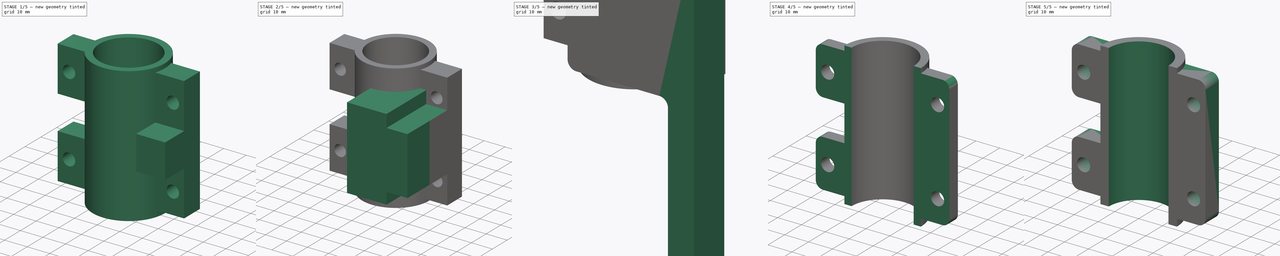
[diagram: build sequence overview — one tinted view per stage of 5, left to right]
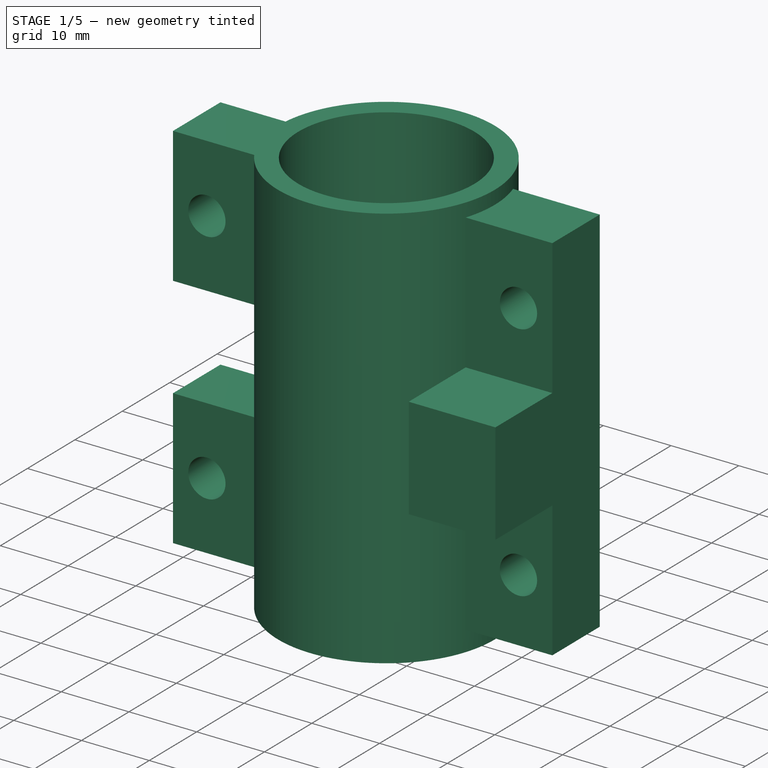
[diagram: stage 1 of 5 — iso view after this stage's code; geometry added in this stage tinted green]
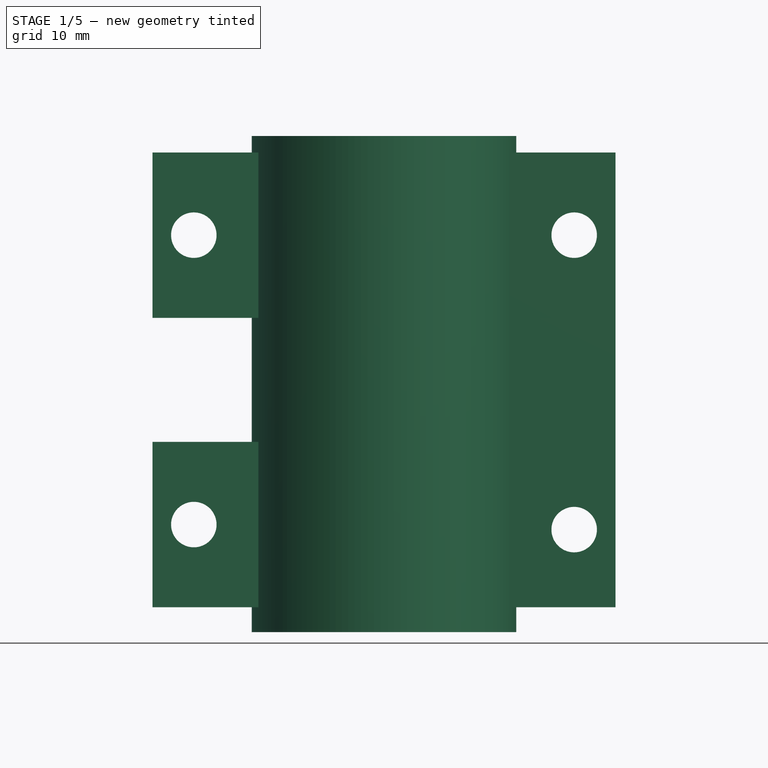
[diagram: stage 1 of 5 — front view after this stage's code; geometry added in this stage tinted green]
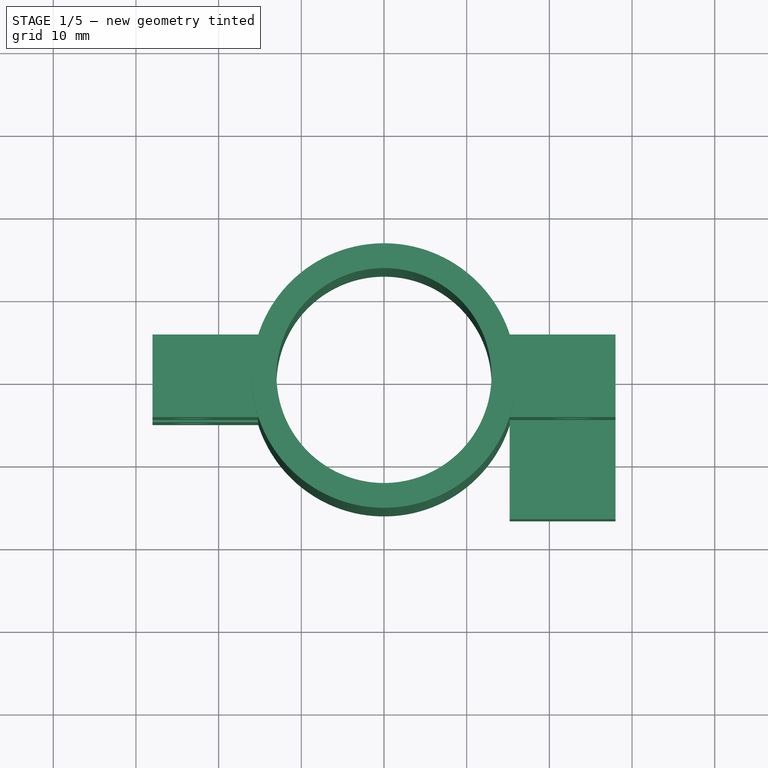
[diagram: stage 1 of 5 — top view after this stage's code; geometry added in this stage tinted green]
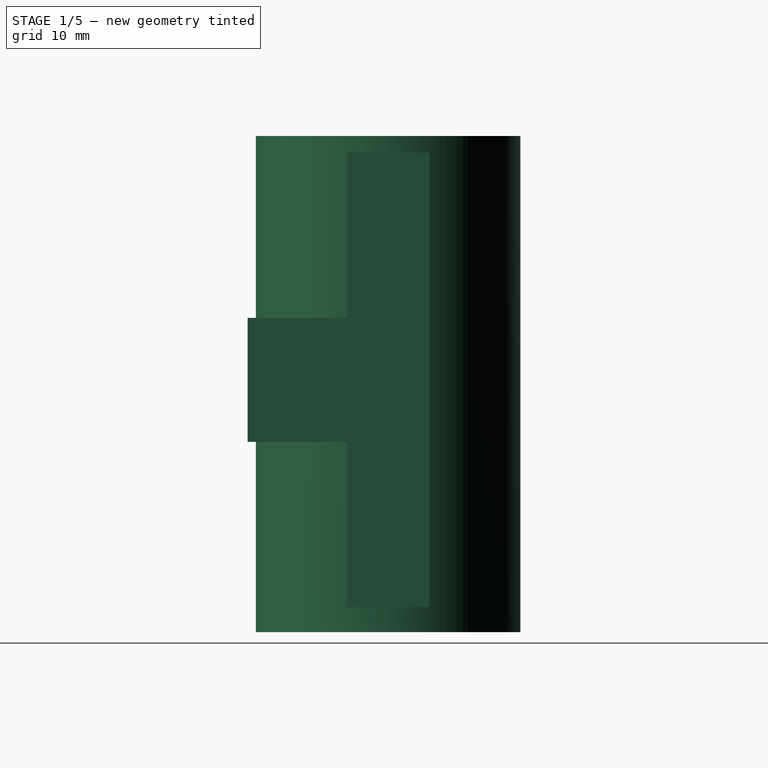
[diagram: stage 1 of 5 — right view after this stage's code; geometry added in this stage tinted green]
FCSTD DOCUMENT  (FreeCAD 1.0R39109 (Git))
Label: lockVV
License: All rights reserved
LicenseURL: http://en.wikipedia.org/wiki/All_rights_reserved
objects: PartDesign::Pad×17, Sketcher::SketchObject×12, PartDesign::Pocket×12, PartDesign::Fillet×7, PartDesign::Plane×1, PartDesign::Body×1
note: 134 computed .brp shape members not serialized (recipe doc carries the construction recipe); baked Part::Feature solids carry a one-line shape summary decoded from their .brp

FEATURE [Sketcher::SketchObject] Sketch
  ArcFitTolerance = 1e-06
  AttachmentSupport = -> [XY_Plane]
  FullyConstrained = true
  MakeInternals = false
  MapMode = 5
  sketch-geometry (2):
    g0: Circle CenterX=0 CenterY=0 CenterZ=0 NormalX=0 NormalY=0 NormalZ=1 AngleXU=0 Radius=16
    g1: Circle [constr] CenterX=0 CenterY=0 CenterZ=0 NormalX=0 NormalY=0 NormalZ=1 AngleXU=0 Radius=13
  constraints (4):
    c: Coincident(g0,g-1)
    c: Diameter(g0) = 32
    c: Coincident(g1,g0)
    c: Diameter(g1) = 26
FEATURE [PartDesign::Pad] Pad
  Direction = (0,0,1)
  Length = 60
  Length2 = 10
  Profile = -> Sketch
  ReferenceAxis = -> Sketch [N_Axis]
  Suppressed = false
  Type = 0
FEATURE [PartDesign::Plane] DatumPlane
  AttachmentOffset = pos=(1,0,0) rot=(0,-1,0;1.5708rad)
  AttachmentSupport = -> [Pad]
  Length = 98.0384
  MapMode = 7
  Placement = pos=(15,0,0) rot=(0,1,0;1.5708rad)
  ResizeMode = 0
  Width = 63.0384
FEATURE [Sketcher::SketchObject] Sketch002
  ArcFitTolerance = 1e-06
  AttachmentSupport = -> [DatumPlane]
  FullyConstrained = true
  MakeInternals = false
  MapMode = 5
  Placement = pos=(15,0,0) rot=(0,1,0;1.5708rad)
  sketch-geometry (8):
    g0: LineSegment StartX=-58 StartY=5 StartZ=0 EndX=-58 EndY=-5 EndZ=0
    g1: LineSegment StartX=-58 StartY=-5 StartZ=0 EndX=-38 EndY=-5 EndZ=0
    g2: LineSegment StartX=-38 StartY=-5 StartZ=0 EndX=-38 EndY=5 EndZ=0
    g3: LineSegment StartX=-38 StartY=5 StartZ=0 EndX=-58 EndY=5 EndZ=0
    g4: LineSegment StartX=-23 StartY=5 StartZ=0 EndX=-23 EndY=-5 EndZ=0
    g5: LineSegment StartX=-23 StartY=-5 StartZ=0 EndX=-3 EndY=-5 EndZ=0
    g6: LineSegment StartX=-3 StartY=-5 StartZ=0 EndX=-3 EndY=5 EndZ=0
    g7: LineSegment StartX=-3 StartY=5 StartZ=0 EndX=-23 EndY=5 EndZ=0
  constraints (24):
    c: Coincident(g0,g1)
    c: Coincident(g1,g2)
    c: Coincident(g2,g3)
    c: Coincident(g3,g0)
    c: Vertical(g0)
    c: Vertical(g2)
    c: Horizontal(g1)
    c: Horizontal(g3)
    c: Distance(g0,g2) = 20
    c: Distance(g1,g3) = 10
    c: Coincident(g4,g5)
    c: Coincident(g5,g6)
    c: Coincident(g6,g7)
    c: Coincident(g7,g4)
    c: Vertical(g4)
    c: Vertical(g6)
    c: Horizontal(g5)
    c: Horizontal(g7)
    c: Distance(g4,g6) = 20
    c: Distance(g5,g7) = 10
    c: DistanceX(g2,g4) = 15
    c: DistanceX(g6,g-1) = 3
    c: DistanceY(g6,g2) = 0
    c: DistanceY(g-1,g6) = 5
FEATURE [PartDesign::Pad] Pad001
  BaseFeature = -> Pad
  Direction = (1,0,2e-16)
  Length = 13
  Length2 = 10
  Profile = -> Sketch002
  ReferenceAxis = -> Sketch002 [N_Axis]
  Suppressed = false
  Type = 0
FEATURE [PartDesign::Pad] Pad002
  BaseFeature = -> Pad001
  Direction = (1,0,2e-16)
  Length = 56
  Length2 = 10
  Profile = -> Pad001 [Face13,Face12]
  Reversed = true
  Suppressed = false
  Type = 0
FEATURE [Sketcher::SketchObject] Sketch003
  ArcFitTolerance = 1e-06
  AttachmentSupport = -> [Pad002]
  FullyConstrained = true
  MakeInternals = false
  MapMode = 5
  Placement = pos=(0,0,60) rot=(0,0,1;0rad)
  sketch-geometry (1):
    g0: Circle CenterX=0 CenterY=0 CenterZ=0 NormalX=0 NormalY=0 NormalZ=1 AngleXU=0 Radius=13
  constraints (2):
    c: Coincident(g0,g-1)
    c: Diameter(g0) = 26
FEATURE [PartDesign::Pocket] Pocket
  BaseFeature = -> Pad002
  Direction = (0,0,-1)
  Length = 100
  Length2 = 5
  Profile = -> Sketch003
  ReferenceAxis = -> Sketch003 [N_Axis]
  Suppressed = false
  Type = 0
FEATURE [Sketcher::SketchObject] Sketch004
  ArcFitTolerance = 1e-06
  AttachmentSupport = -> [Pocket]
  FullyConstrained = true
  MakeInternals = false
  MapMode = 5
  Placement = pos=(0,5,0) rot=(0,0.707107,0.707107;3.14159rad)
  sketch-geometry (4):
    g0: Circle CenterX=-23 CenterY=48 CenterZ=0 NormalX=0 NormalY=0 NormalZ=1 AngleXU=0 Radius=2.75
    g1: Circle CenterX=-23 CenterY=12.39 CenterZ=0 NormalX=0 NormalY=0 NormalZ=1 AngleXU=0 Radius=2.75
    g2: Circle CenterX=23 CenterY=13 CenterZ=0 NormalX=0 NormalY=0 NormalZ=1 AngleXU=0 Radius=2.75
    g3: Circle CenterX=23 CenterY=48 CenterZ=0 NormalX=0 NormalY=0 NormalZ=1 AngleXU=0 Radius=2.75
  constraints (12):
    c: Diameter(g3) = 5.5
    c: Diameter(g2) = 5.5
    c: Diameter(g1) = 5.5
    c: Diameter(g0) = 5.5
    c: DistanceX(g1,g0) = 0
    c: DistanceX(g3,g2) = 0
    c: DistanceY(g0,g3) = 0
    c: DistanceY(g1,g2) = 0.61
    c: DistanceX(g-1,g2) = 23
    c: DistanceX(g1,g-1) = 23
    c: DistanceY(g-1,g2) = 13
    c: DistanceY(g2,g3) = 35
FEATURE [PartDesign::Pocket] Pocket001
  BaseFeature = -> Pocket
  Direction = (0,-1,2e-16)
  Length = 16
  Length2 = 5
  Profile = -> Sketch004
  ReferenceAxis = -> Sketch004 [N_Axis]
  Suppressed = false
  Type = 0
FEATURE [PartDesign::Pad] Pad003
  BaseFeature = -> Pocket001
  Direction = (2e-16,0,-1)
  Length = 15
  Length2 = 10
  Profile = -> Pocket001 [Face5]
  Suppressed = false
  Type = 0
FEATURE [PartDesign::Pad] Pad004
  BaseFeature = -> Pad003
  Direction = (0,-1,0)
  Length = 12
  Length2 = 10
  Profile = -> Pad003 [Face5]
  Suppressed = false
  Type = 0
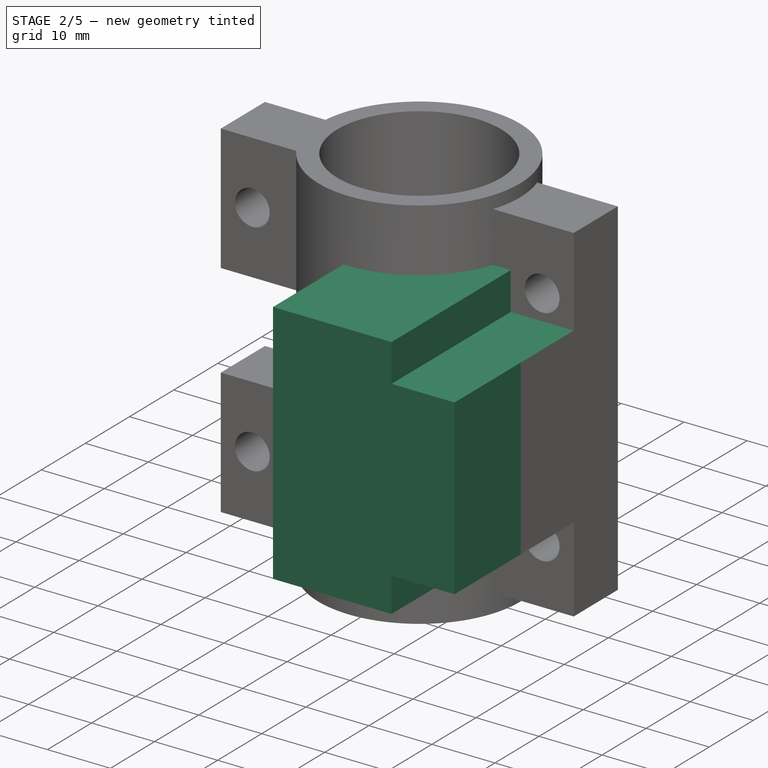
[diagram: stage 2 of 5 — iso view after this stage's code; geometry added in this stage tinted green]
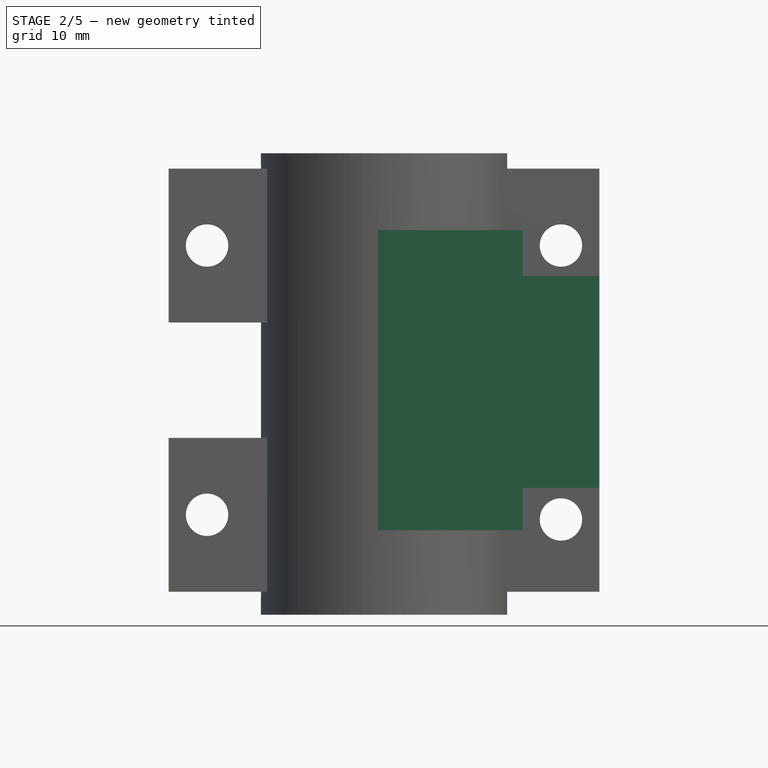
[diagram: stage 2 of 5 — front view after this stage's code; geometry added in this stage tinted green]
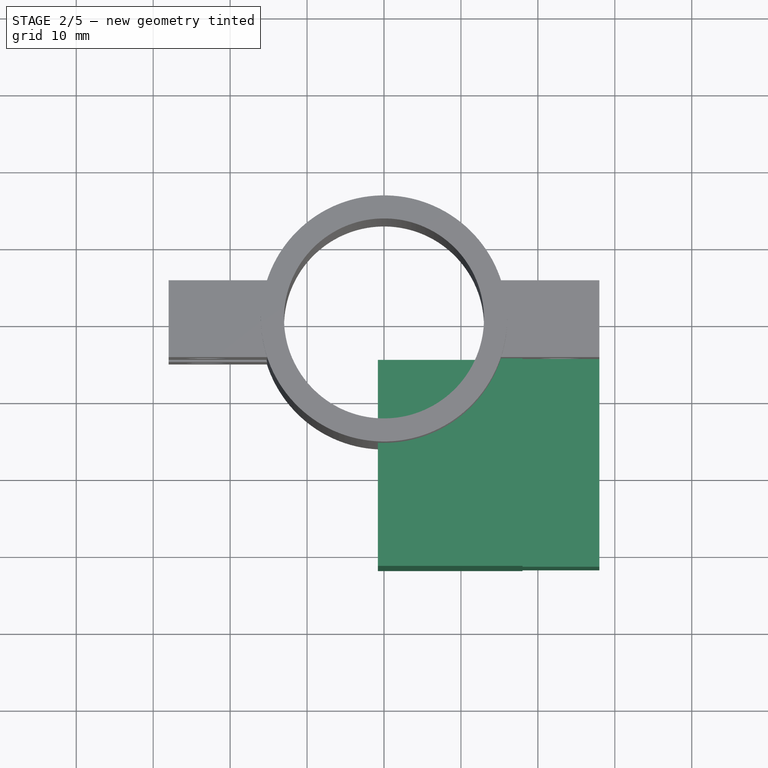
[diagram: stage 2 of 5 — top view after this stage's code; geometry added in this stage tinted green]
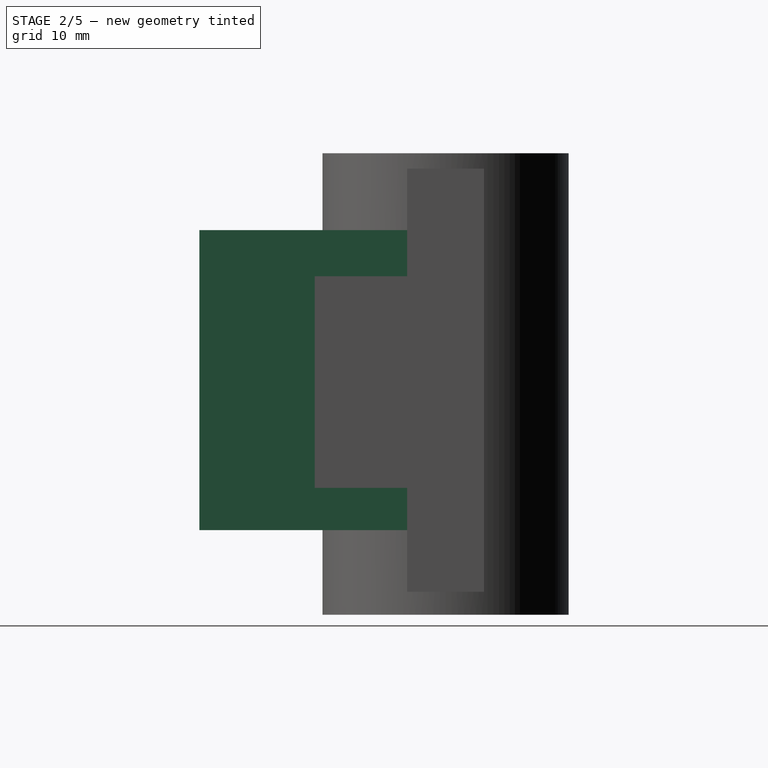
[diagram: stage 2 of 5 — right view after this stage's code; geometry added in this stage tinted green]
FEATURE [PartDesign::Pad] Pad005
  BaseFeature = -> Pad004
  Direction = (-1,0,-2e-16)
  Length = 16
  Length2 = 10
  Profile = -> Pad004 [Face4]
  Refine = true
  Suppressed = false
  Type = 0
FEATURE [PartDesign::Pad] Pad006
  BaseFeature = -> Pad005
  Direction = (3e-16,0,-1)
  Length = 12
  Length2 = 10
  Profile = -> Pad005 [Face28]
  Suppressed = false
  Type = 0
FEATURE [PartDesign::Pad] Pad007
  BaseFeature = -> Pad006
  Direction = (0,0,1)
  Length = 12
  Length2 = 10
  Profile = -> Pad006 [Face7]
  Refine = true
  Suppressed = false
  Type = 0
FEATURE [PartDesign::Pocket] Pocket002
  BaseFeature = -> Pad007
  Direction = (0,-1,0)
  Length = 15
  Length2 = 5
  Profile = -> Pad007 [Face22]
  Suppressed = false
  Type = 0
FEATURE [PartDesign::Pocket] Pocket003
  BaseFeature = -> Pocket002
  Direction = (0,-1,0)
  Length = 13
  Length2 = 5
  Profile = -> Pocket002 [Face23]
  Suppressed = false
  Type = 0
FEATURE [Sketcher::SketchObject] Sketch005
  ArcFitTolerance = 1e-06
  AttachmentSupport = -> [Pocket003]
  FullyConstrained = true
  MakeInternals = false
  MapMode = 5
  Placement = pos=(0,-17,0) rot=(1,0,0;1.5708rad)
  sketch-geometry (8):
    g0: LineSegment StartX=18 StartY=52 StartZ=0 EndX=18 EndY=44 EndZ=0
    g1: LineSegment StartX=18 StartY=44 StartZ=0 EndX=28 EndY=44 EndZ=0
    g2: LineSegment StartX=28 StartY=44 StartZ=0 EndX=28 EndY=52 EndZ=0
    g3: LineSegment StartX=28 StartY=52 StartZ=0 EndX=18 EndY=52 EndZ=0
    g4: LineSegment StartX=28 StartY=8.5 StartZ=0 EndX=28 EndY=16.5 EndZ=0
    g5: LineSegment StartX=28 StartY=16.5 StartZ=0 EndX=18 EndY=16.5 EndZ=0
    g6: LineSegment StartX=18 StartY=16.5 StartZ=0 EndX=18 EndY=8.5 EndZ=0
    g7: LineSegment StartX=18 StartY=8.5 StartZ=0 EndX=28 EndY=8.5 EndZ=0
  constraints (24):
    c: Coincident(g0,g1)
    c: Coincident(g1,g2)
    c: Coincident(g2,g3)
    c: Coincident(g3,g0)
    c: Vertical(g0)
    c: Vertical(g2)
    c: Horizontal(g1)
    c: Horizontal(g3)
    c: Coincident(g4,g5)
    c: Coincident(g5,g6)
    c: Coincident(g6,g7)
    c: Coincident(g7,g4)
    c: Vertical(g4)
    c: Vertical(g6)
    c: Horizontal(g5)
    c: Horizontal(g7)
    c: DistanceX(g3,g3) = 10
    c: DistanceX(g7,g7) = 10
    c: DistanceY(g4,g4) = 8
    c: DistanceY(g2,g2) = 8
    c: DistanceX(g-1,g6) = 18
    c: DistanceX(g1,g4) = 0
    c: DistanceY(g-1,g6) = 8.5
    c: DistanceY(g4,g1) = 27.5
FEATURE [PartDesign::Pocket] Pocket004
  BaseFeature = -> Pocket003
  Direction = (0,1,-2e-16)
  Length = 12
  Length2 = 5
  Profile = -> Sketch005
  ReferenceAxis = -> Sketch005 [N_Axis]
  Refine = true
  Suppressed = false
  Type = 0
FEATURE [PartDesign::Pad] Pad008
  BaseFeature = -> Pocket004
  Direction = (0,-1,0)
  Length = 15
  Length2 = 10
  Profile = -> Pocket004 [Face20]
  Suppressed = false
  Type = 0
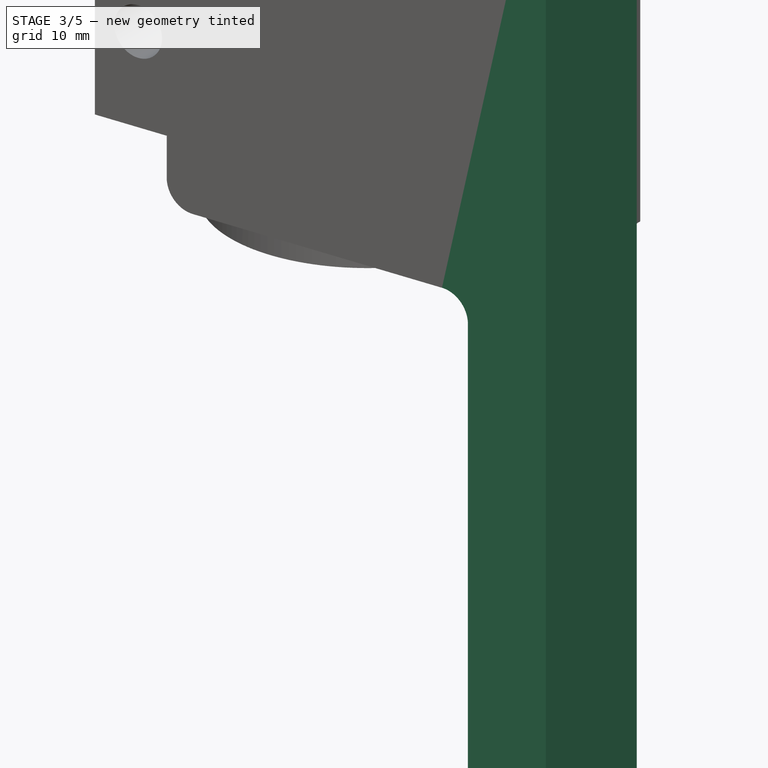
[diagram: stage 3 of 5 — iso view after this stage's code; geometry added in this stage tinted green]
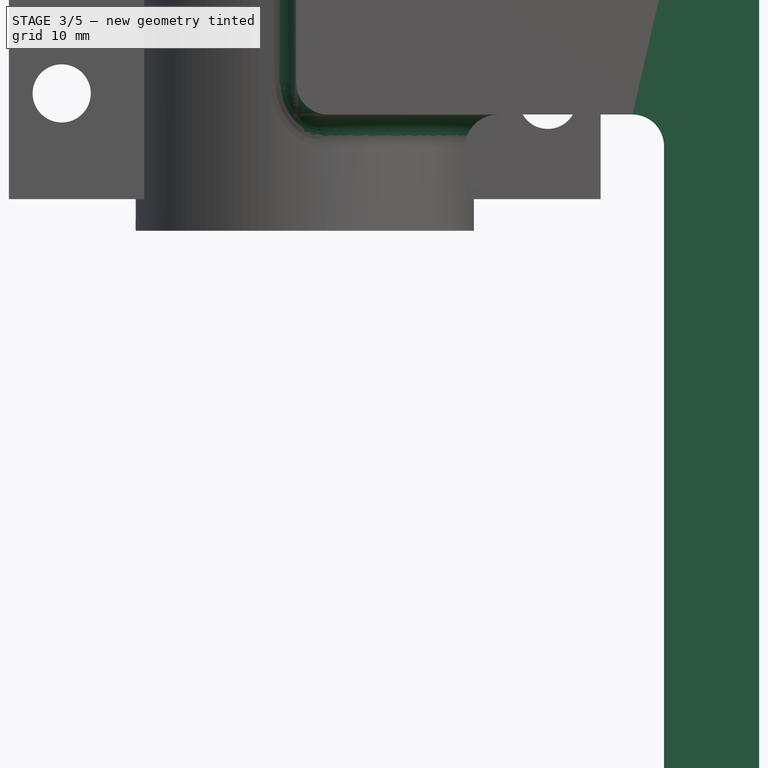
[diagram: stage 3 of 5 — front view after this stage's code; geometry added in this stage tinted green]
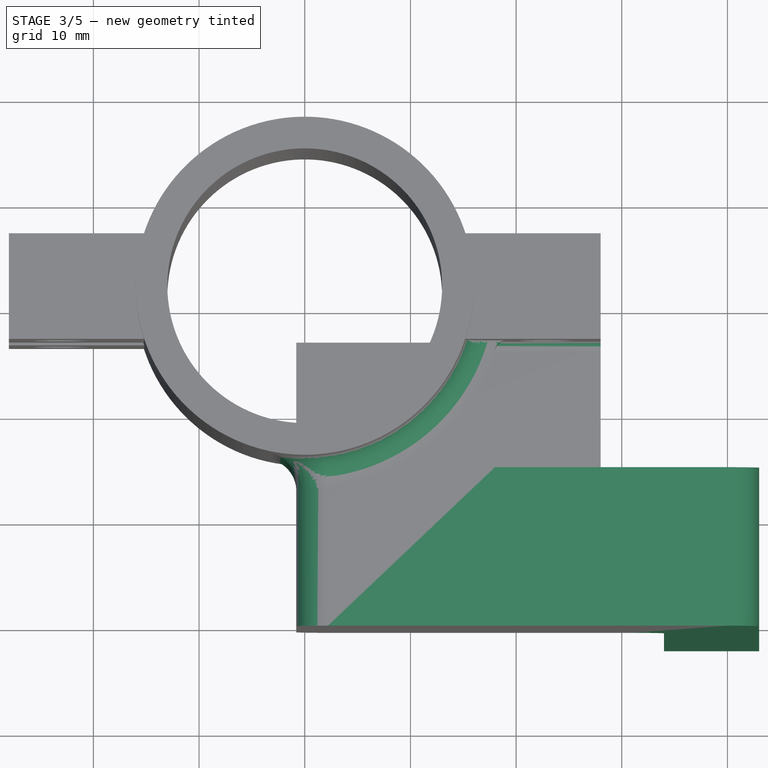
[diagram: stage 3 of 5 — top view after this stage's code; geometry added in this stage tinted green]
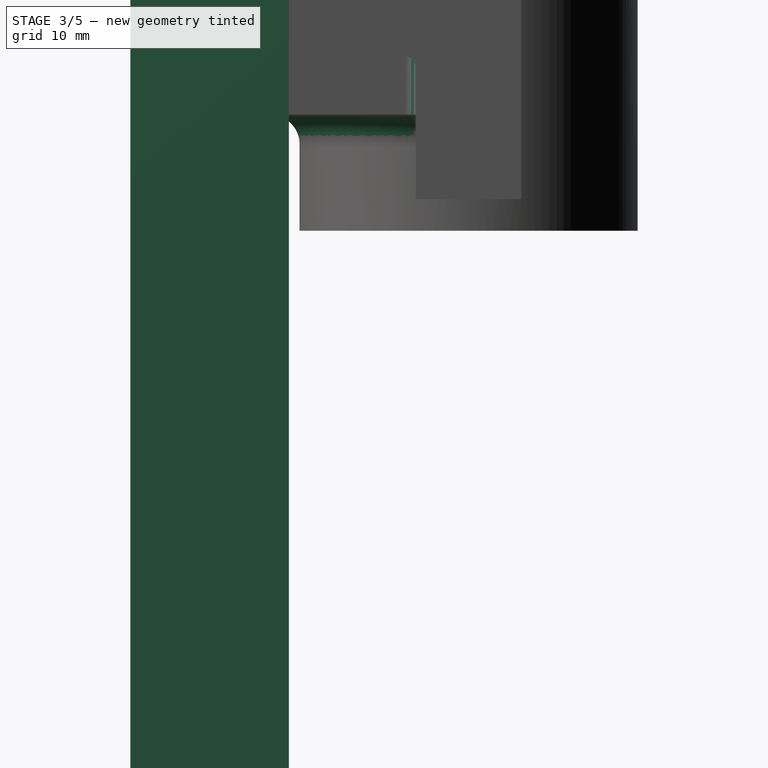
[diagram: stage 3 of 5 — right view after this stage's code; geometry added in this stage tinted green]
FEATURE [PartDesign::Pad] Pad009
  BaseFeature = -> Pad008
  Direction = (1,0,0)
  Length = 10
  Length2 = 10
  Profile = -> Pad008 [Face41]
  Suppressed = false
  Type = 0
FEATURE [PartDesign::Pad] Pad010
  BaseFeature = -> Pad009
  Direction = (1,0,0)
  Length = 10
  Length2 = 10
  Profile = -> Pad009 [Face43]
  Suppressed = false
  Type = 0
FEATURE [PartDesign::Pad] Pad011
  BaseFeature = -> Pad010
  Direction = (1,0,0)
  Length = 15
  Length2 = 10
  Profile = -> Pad010 [Face45,Face39,Face46]
  Suppressed = false
  Type = 0
FEATURE [PartDesign::Pad] Pad012
  BaseFeature = -> Pad011
  Direction = (0,0,-1)
  Length = 100
  Length2 = 10
  Profile = -> Pad011 [Face49]
  Refine = true
  Suppressed = false
  Type = 0
FEATURE [PartDesign::Pocket] Pocket005
  BaseFeature = -> Pad012
  Direction = (1,0,0)
  Length = 6
  Length2 = 5
  Profile = -> Pad012 [Face34]
  Refine = true
  Suppressed = false
  Type = 0
FEATURE [PartDesign::Fillet] Fillet
  Base = -> Pocket005 [Edge108,Edge34,Edge36,Edge38]
  BaseFeature = -> Pocket005
  Radius = 3
  SupportTransform = false
  Suppressed = false
  UseAllEdges = false
FEATURE [PartDesign::Fillet] Fillet001
  Base = -> Fillet [Edge4]
  BaseFeature = -> Fillet
  Radius = 3
  SupportTransform = false
  Suppressed = false
  UseAllEdges = false
FEATURE [PartDesign::Fillet] Fillet002
  Base = -> Fillet001 [Edge27,Edge29,Edge51,Edge49]
  BaseFeature = -> Fillet001
  Radius = 1
  SupportTransform = false
  Suppressed = false
  UseAllEdges = false
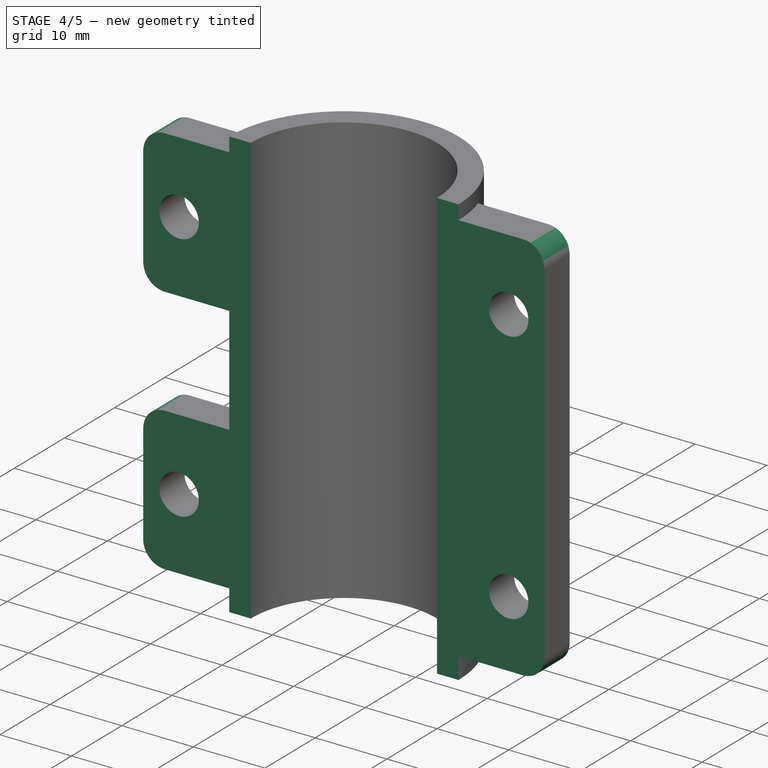
[diagram: stage 4 of 5 — iso view after this stage's code; geometry added in this stage tinted green]
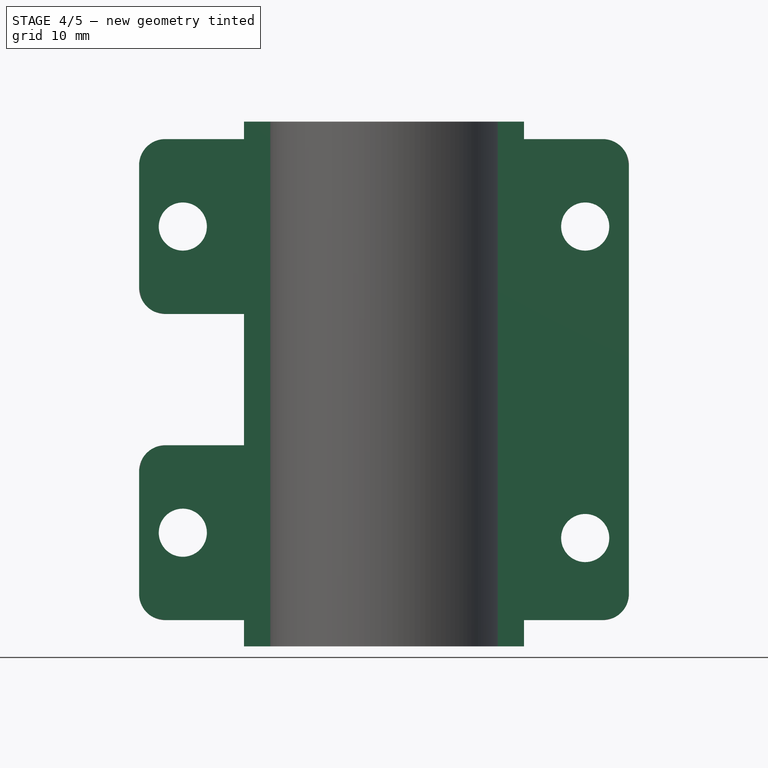
[diagram: stage 4 of 5 — front view after this stage's code; geometry added in this stage tinted green]
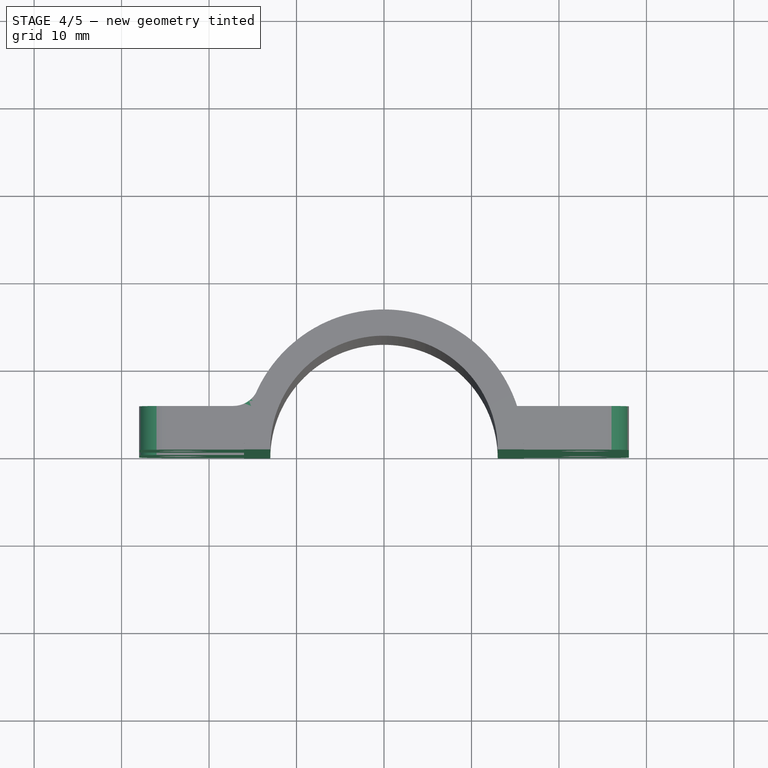
[diagram: stage 4 of 5 — top view after this stage's code; geometry added in this stage tinted green]
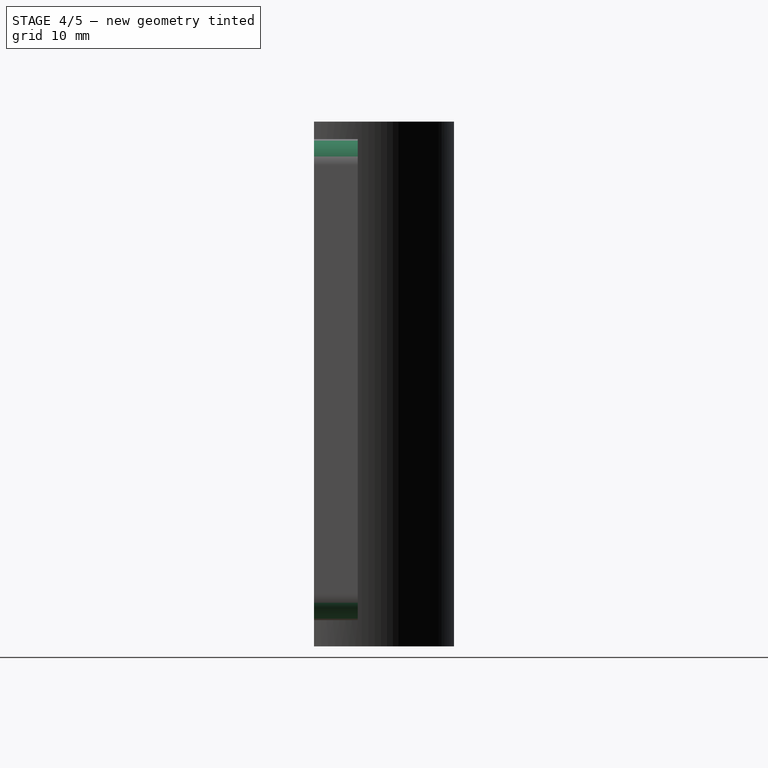
[diagram: stage 4 of 5 — right view after this stage's code; geometry added in this stage tinted green]
FEATURE [PartDesign::Fillet] Fillet003
  Base = -> Fillet002 [Edge65,Edge63,Edge15,Edge53,Edge59]
  BaseFeature = -> Fillet002
  Radius = 3
  SupportTransform = false
  Suppressed = false
  UseAllEdges = false
FEATURE [PartDesign::Fillet] Fillet004
  Base = -> Fillet003 [Edge61,Edge106,Edge58,Edge102]
  BaseFeature = -> Fillet003
  Radius = 2
  SupportTransform = false
  Suppressed = false
  UseAllEdges = false
FEATURE [Sketcher::SketchObject] Sketch006
  ArcFitTolerance = 1e-06
  AttachmentSupport = -> [Fillet004]
  FullyConstrained = true
  MakeInternals = false
  MapMode = 5
  Placement = pos=(0,0,0) rot=(1,0,0;3.14159rad)
  sketch-geometry (1):
    g0: Circle CenterX=0 CenterY=0 CenterZ=0 NormalX=0 NormalY=0 NormalZ=1 AngleXU=0 Radius=13
  constraints (2):
    c: Coincident(g0,g-1)
    c: Diameter(g0) = 26
FEATURE [PartDesign::Pocket] Pocket006
  BaseFeature = -> Fillet004
  Direction = (0,0,1)
  Length = 200
  Length2 = 5
  Profile = -> Sketch006
  ReferenceAxis = -> Sketch006 [N_Axis]
  Refine = true
  Suppressed = false
  Type = 0
FEATURE [PartDesign::Fillet] Fillet005
  Base = -> Pocket006 [Edge109,Edge112,Edge102,Edge99,Edge29,Edge26]
  BaseFeature = -> Pocket006
  Radius = 3
  SupportTransform = false
  Suppressed = false
  UseAllEdges = false
FEATURE [PartDesign::Fillet] Fillet006
  Base = -> Fillet005 [Edge46,Edge50,Edge47,Edge43]
  BaseFeature = -> Fillet005
  Radius = 3
  Refine = true
  SupportTransform = false
  Suppressed = false
  UseAllEdges = false
FEATURE [Sketcher::SketchObject] Sketch007
  ArcFitTolerance = 1e-06
  AttachmentSupport = -> [Fillet006]
  FullyConstrained = true
  MakeInternals = false
  MapMode = 5
  Placement = pos=(43,0,0) rot=(0.57735,0.57735,0.57735;2.0944rad)
  sketch-geometry (8):
    g0: Circle CenterX=-24.5 CenterY=-85 CenterZ=0 NormalX=0 NormalY=0 NormalZ=1 AngleXU=0 Radius=2.75
    g1: Circle CenterX=-24.5 CenterY=-73 CenterZ=0 NormalX=0 NormalY=0 NormalZ=1 AngleXU=0 Radius=2.75
    g2: Circle CenterX=-24.5 CenterY=-61 CenterZ=0 NormalX=0 NormalY=0 NormalZ=1 AngleXU=0 Radius=2.75
    g3: Circle CenterX=-24.5 CenterY=-49 CenterZ=0 NormalX=0 NormalY=0 NormalZ=1 AngleXU=0 Radius=2.75
    g4: Circle CenterX=-24.5 CenterY=-37 CenterZ=0 NormalX=0 NormalY=0 NormalZ=1 AngleXU=0 Radius=2.75
    g5: Circle CenterX=-24.5 CenterY=-25 CenterZ=0 NormalX=0 NormalY=0 NormalZ=1 AngleXU=0 Radius=2.75
    g6: Circle CenterX=-24.5 CenterY=-13 CenterZ=0 NormalX=0 NormalY=0 NormalZ=1 AngleXU=0 Radius=2.75
    g7: Circle CenterX=-24.5 CenterY=-1 CenterZ=0 NormalX=0 NormalY=0 NormalZ=1 AngleXU=0 Radius=2.75
  constraints (24):
    c: Diameter(g0) = 5.5
    c: Diameter(g1) = 5.5
    c: Diameter(g2) = 5.5
    c: Diameter(g3) = 5.5
    c: Diameter(g4) = 5.5
    c: Diameter(g5) = 5.5
    c: Diameter(g6) = 5.5
    c: Diameter(g7) = 5.5
    c: DistanceX(g1,g0) = 0
    c: DistanceX(g2,g1) = 0
    c: DistanceX(g2,g3) = 0
    c: DistanceX(g4,g3) = 0
    c: DistanceX(g4,g5) = 0
    c: DistanceX(g6,g5) = 0
    c: DistanceX(g6,g7) = 0
    c: DistanceY(g0,g-1) = 85
    c: DistanceY(g0,g1) = 12
    c: DistanceY(g1,g2) = 12
    c: DistanceY(g2,g3) = 12
    c: DistanceY(g3,g4) = 12
    c: DistanceY(g4,g5) = 12
    c: DistanceY(g5,g6) = 12
    c: DistanceY(g6,g7) = 12
    c: DistanceX(g7,g-1) = 24.5
FEATURE [PartDesign::Pocket] Pocket007
  BaseFeature = -> Fillet006
  Direction = (-1,0,0)
  Length = 13
  Length2 = 5
  Profile = -> Sketch007
  ReferenceAxis = -> Sketch007 [N_Axis]
  Suppressed = false
  Type = 0
FEATURE [Sketcher::SketchObject] Sketch009
  ArcFitTolerance = 1e-06
  AttachmentSupport = -> [Pocket007]
  FullyConstrained = false
  MakeInternals = false
  MapMode = 5
  Placement = pos=(0,0,60) rot=(0,0,1;0rad)
  sketch-geometry (4):
    g0: LineSegment StartX=-38.8063 StartY=0 StartZ=0 EndX=-38.8063 EndY=-45.4564 EndZ=0
    g1: LineSegment StartX=-38.8063 StartY=-45.4564 StartZ=0 EndX=53.9979 EndY=-45.4564 EndZ=0
    g2: LineSegment StartX=53.9979 StartY=-45.4564 StartZ=0 EndX=53.9979 EndY=0 EndZ=0
    g3: LineSegment StartX=53.9979 StartY=0 StartZ=0 EndX=-38.8063 EndY=0 EndZ=0
  constraints (9):
    c: Coincident(g0,g1)
    c: Coincident(g1,g2)
    c: Coincident(g2,g3)
    c: Coincident(g3,g0)
    c: Vertical(g0)
    c: Vertical(g2)
    c: Horizontal(g1)
    c: Horizontal(g3)
    c: PointOnObject(g0,g-1)
FEATURE [PartDesign::Pocket] Pocket008
  BaseFeature = -> Pocket007
  Direction = (0,0,-1)
  Length = 200
  Length2 = 5
  Profile = -> Sketch009
  ReferenceAxis = -> Sketch009 [N_Axis]
  Suppressed = false
  Type = 0
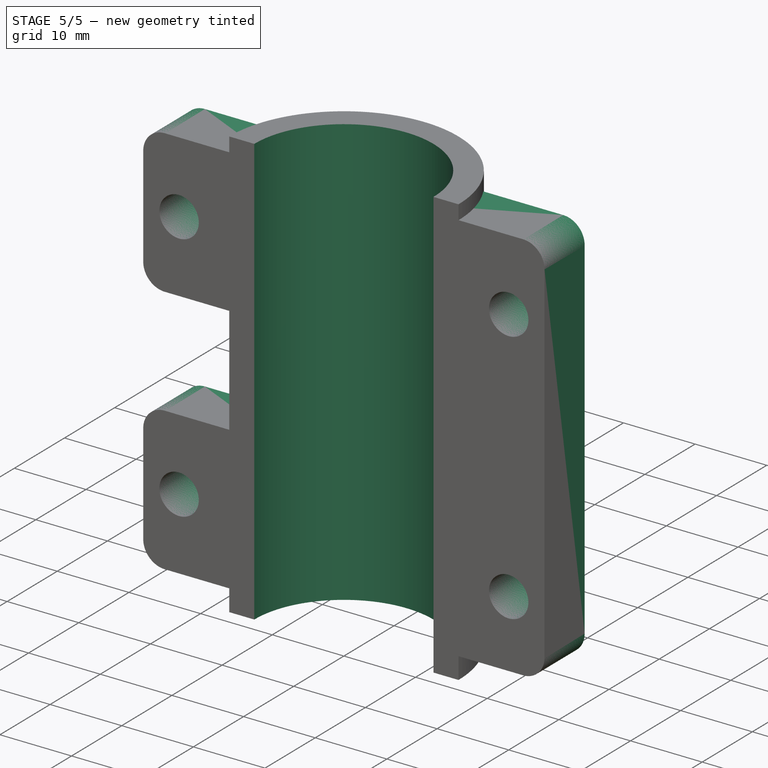
[diagram: stage 5 of 5 — iso view after this stage's code; geometry added in this stage tinted green]
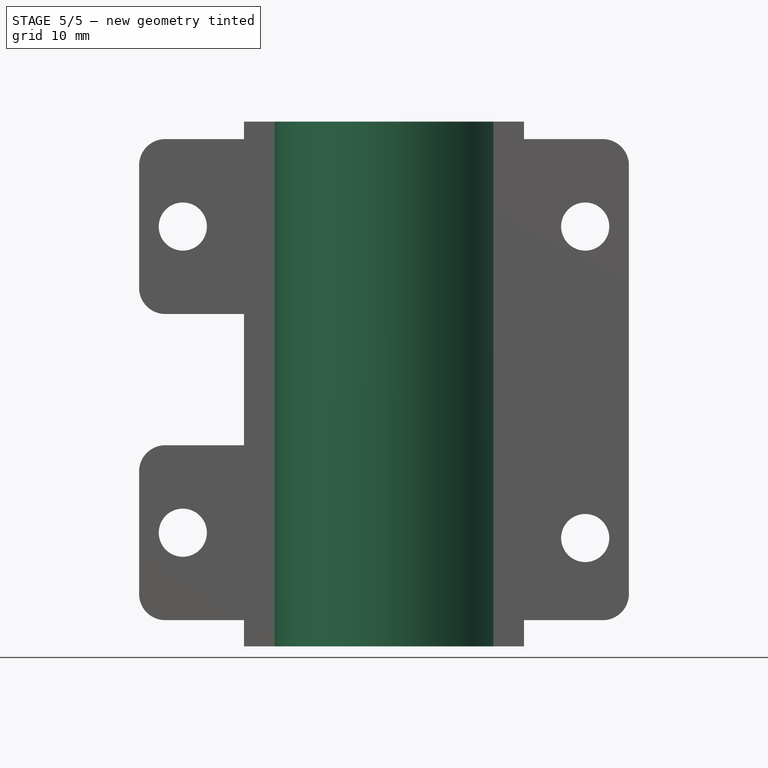
[diagram: stage 5 of 5 — front view after this stage's code; geometry added in this stage tinted green]
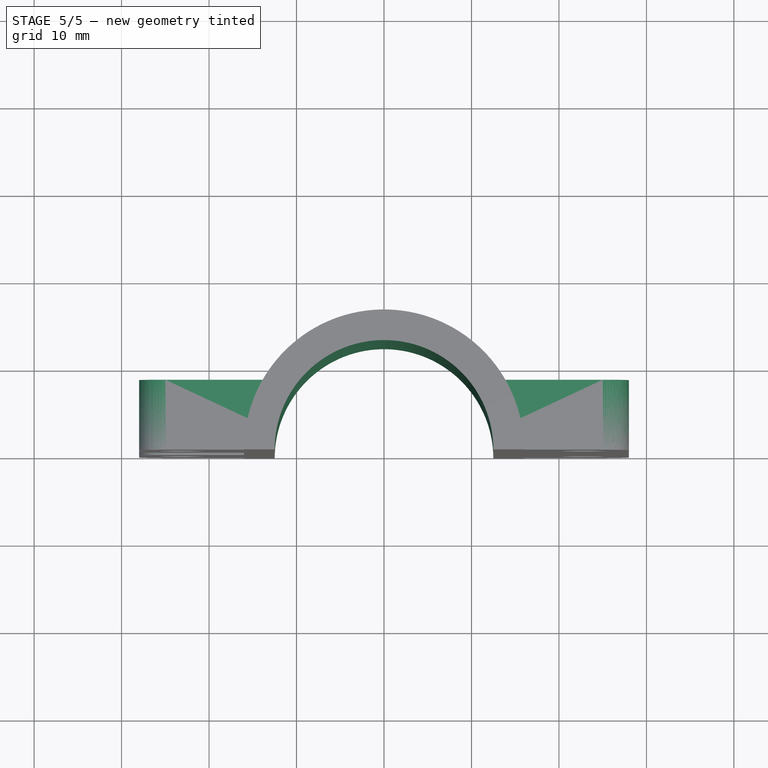
[diagram: stage 5 of 5 — top view after this stage's code; geometry added in this stage tinted green]
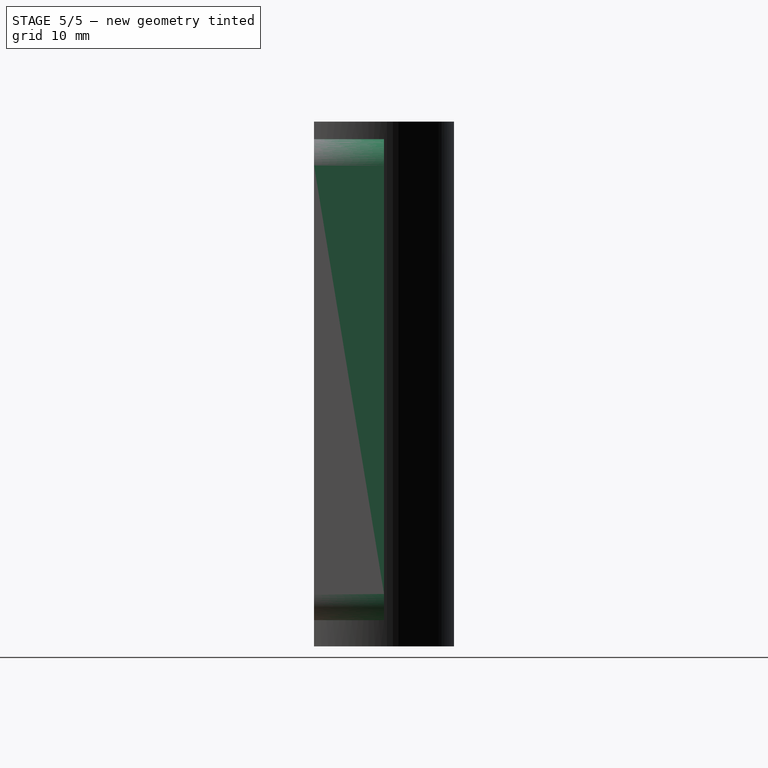
[diagram: stage 5 of 5 — right view after this stage's code; geometry added in this stage tinted green]
FEATURE [PartDesign::Pad] Pad013
  BaseFeature = -> Pocket008
  Direction = (0,1,0)
  Length = 3
  Length2 = 10
  Profile = -> Pocket008 [Face7,Face16,Face30]
  Suppressed = false
  Type = 0
FEATURE [PartDesign::Pad] Pad014
  BaseFeature = -> Pad013
  Direction = (-1,0,0)
  Length = 10
  Length2 = 10
  Profile = -> Pad013 [Face7]
  Suppressed = false
  Type = 0
FEATURE [PartDesign::Pad] Pad015
  BaseFeature = -> Pad014
  Direction = (1,0,0)
  Length = 10
  Length2 = 10
  Profile = -> Pad014 [Face38,Face35]
  Refine = true
  Suppressed = false
  Type = 0
FEATURE [Sketcher::SketchObject] Sketch010
  ArcFitTolerance = 1e-06
  AttachmentSupport = -> [Pad015]
  FullyConstrained = true
  MakeInternals = false
  MapMode = 5
  Placement = pos=(0,0,60) rot=(0,0,1;0rad)
  sketch-geometry (1):
    g0: Circle CenterX=0 CenterY=0 CenterZ=0 NormalX=0 NormalY=0 NormalZ=1 AngleXU=0 Radius=13
  constraints (2):
    c: Diameter(g0) = 26
    c: Coincident(g0,g-1)
FEATURE [PartDesign::Pocket] Pocket009
  BaseFeature = -> Pad015
  Direction = (0,0,-1)
  Length = 500
  Length2 = 5
  Profile = -> Sketch010
  ReferenceAxis = -> Sketch010 [N_Axis]
  Refine = true
  Suppressed = false
  Type = 0
FEATURE [Sketcher::SketchObject] Sketch011
  ArcFitTolerance = 1e-06
  AttachmentSupport = -> [Pocket009]
  FullyConstrained = true
  MakeInternals = false
  MapMode = 5
  Placement = pos=(0,0,60) rot=(0,0,1;0rad)
  sketch-geometry (1):
    g0: Circle CenterX=0 CenterY=0 CenterZ=0 NormalX=0 NormalY=0 NormalZ=1 AngleXU=0 Radius=13
  constraints (2):
    c: Diameter(g0) = 26
    c: Coincident(g0,g-1)
FEATURE [PartDesign::Pad] Pad016
  BaseFeature = -> Pocket009
  Direction = (0,0,1)
  Length = 60
  Length2 = 10
  Profile = -> Sketch011
  ReferenceAxis = -> Sketch011 [N_Axis]
  Refine = true
  Reversed = true
  Suppressed = false
  Type = 0
FEATURE [Sketcher::SketchObject] Sketch012
  ArcFitTolerance = 1e-06
  AttachmentSupport = -> [Pad016]
  FullyConstrained = true
  MakeInternals = false
  MapMode = 5
  Placement = pos=(0,0,60) rot=(0,0,1;0rad)
  sketch-geometry (1):
    g0: Circle CenterX=0 CenterY=0 CenterZ=0 NormalX=0 NormalY=0 NormalZ=1 AngleXU=0 Radius=12.5
  constraints (2):
    c: Diameter(g0) = 25
    c: Coincident(g0,g-1)
FEATURE [PartDesign::Pocket] Pocket010
  BaseFeature = -> Pad016
  Direction = (0,0,-1)
  Length = 80
  Length2 = 5
  Profile = -> Sketch012
  ReferenceAxis = -> Sketch012 [N_Axis]
  Suppressed = false
  Type = 0
FEATURE [Sketcher::SketchObject] Sketch013
  ArcFitTolerance = 1e-06
  AttachmentSupport = -> [Pocket010]
  FullyConstrained = false
  MakeInternals = false
  MapMode = 5
  Placement = pos=(0,0,60) rot=(0,0,1;0rad)
  sketch-geometry (4):
    g0: LineSegment StartX=-19.2912 StartY=0 StartZ=0 EndX=-19.2912 EndY=-21.6247 EndZ=0
    g1: LineSegment StartX=-19.2912 StartY=-21.6247 StartZ=0 EndX=26.4736 EndY=-21.6247 EndZ=0
    g2: LineSegment StartX=26.4736 StartY=-21.6247 StartZ=0 EndX=26.4736 EndY=0 EndZ=0
    g3: LineSegment StartX=26.4736 StartY=0 StartZ=0 EndX=-19.2912 EndY=0 EndZ=0
  constraints (9):
    c: Coincident(g0,g1)
    c: Coincident(g1,g2)
    c: Coincident(g2,g3)
    c: Coincident(g3,g0)
    c: Vertical(g0)
    c: Vertical(g2)
    c: Horizontal(g1)
    c: Horizontal(g3)
    c: PointOnObject(g0,g-1)
FEATURE [PartDesign::Pocket] Pocket011
  BaseFeature = -> Pocket010
  Direction = (0,0,-1)
  Length = 80
  Length2 = 5
  Profile = -> Sketch013
  ReferenceAxis = -> Sketch013 [N_Axis]
  Refine = true
  Suppressed = false
  Type = 0
FEATURE [PartDesign::Body] Body
  AllowCompound = false
  Group = -> [Sketch,Pad,DatumPlane,Sketch002,Pad001,Pad002,Sketch003,Pocket,Sketch004,Pocket001,Pad003,Pad004,Pad005,Pad006,Pad007,Pocket002,Pocket003,Sketch005,Pocket004,Pad008,Pad009,Pad010,Pad011,Pad012,Pocket005,Fillet,Fillet001,Fillet002,Fillet003,Fillet004,Sketch006,Pocket006,Fillet005,Fillet006,Sketch007,Pocket007,Sketch009,Pocket008,Pad013,Pad014,Pad015,Sketch010,Pocket009,Sketch011,Pad016,Sketch012,+3 more]
  Origin = -> Origin
  Tip = -> Pocket011
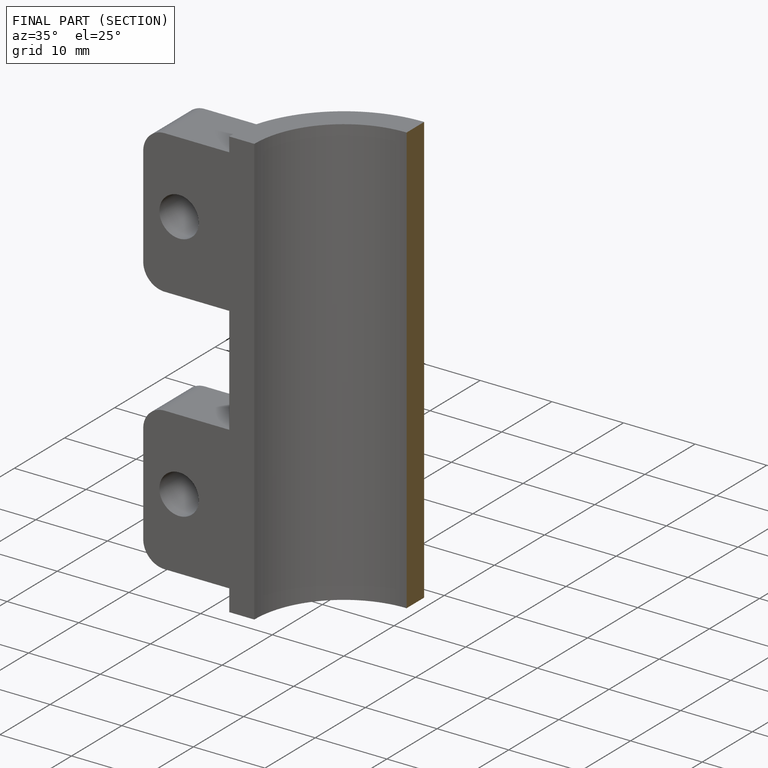
[diagram: finished part — half-section view (interior)]
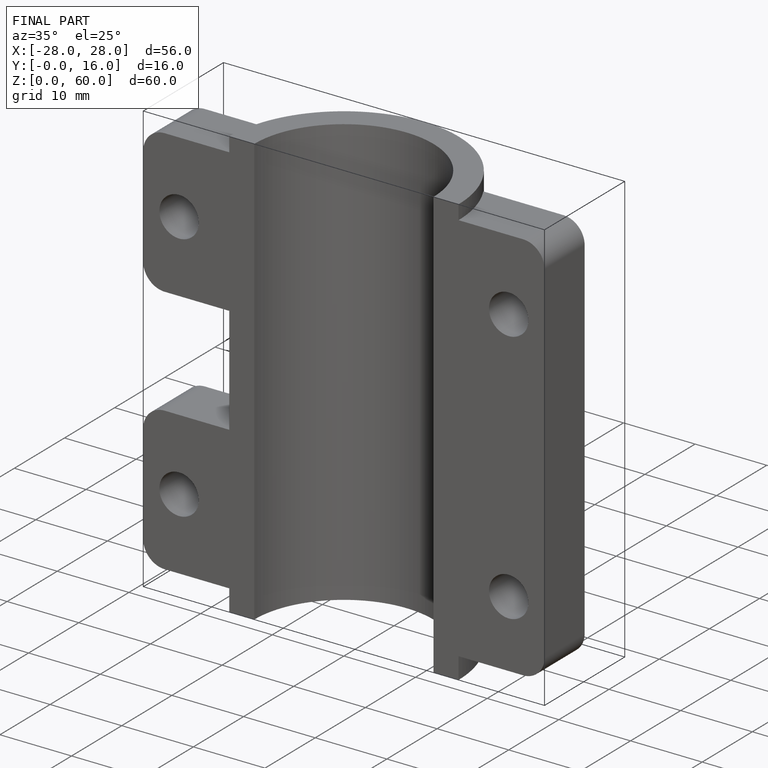
[diagram: finished part — iso view with bounding-box wireframe]
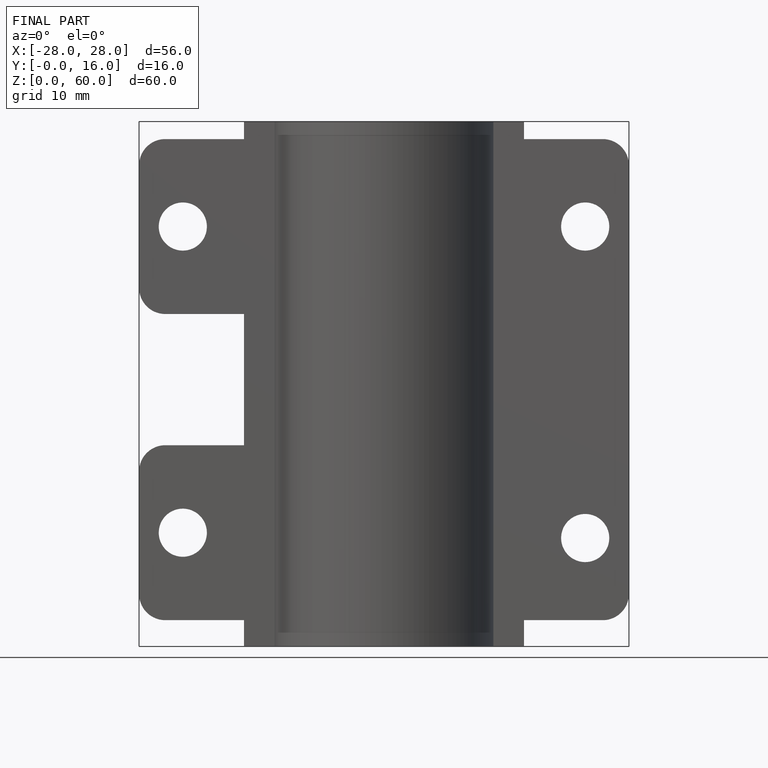
[diagram: finished part — front view with bounding-box wireframe]
